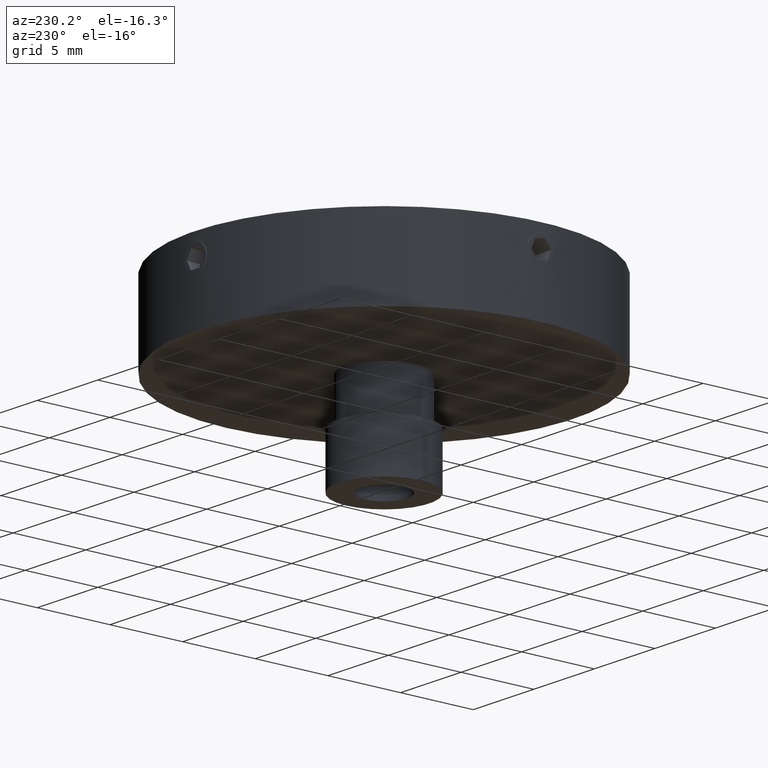
[diagram: clean part render]
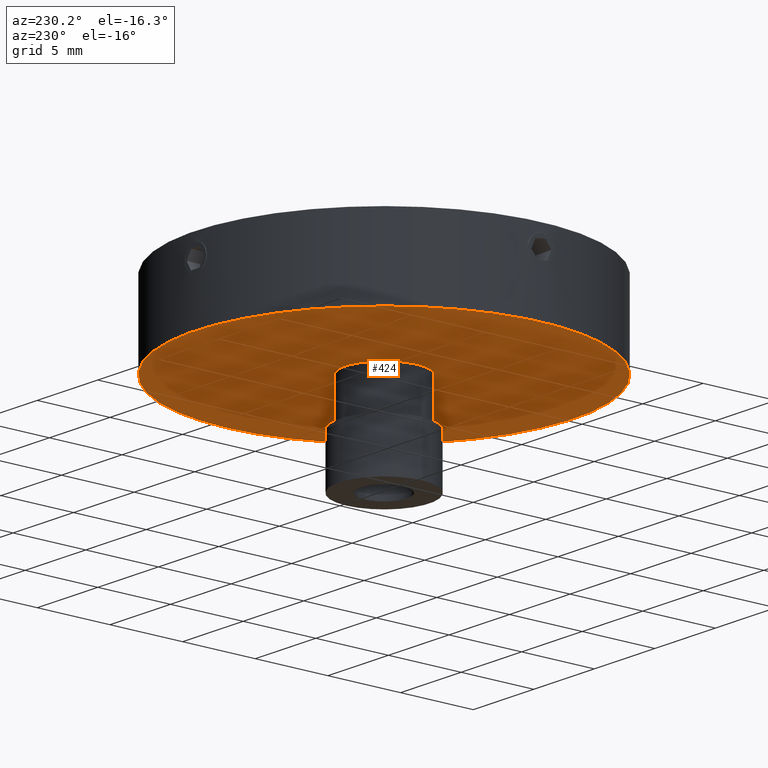
[diagram: same view with one face highlighted and labeled with its STEP entity id]
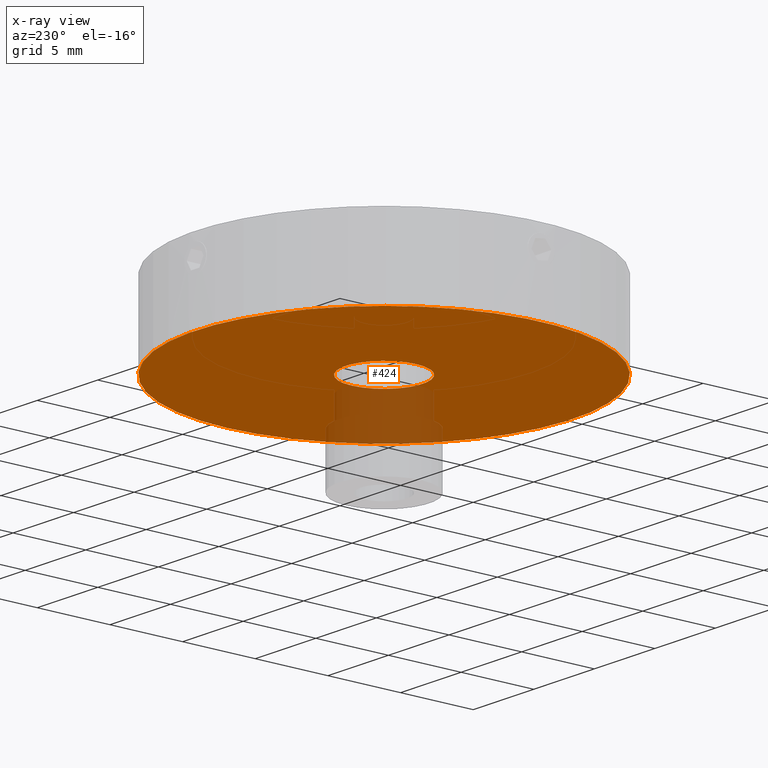
[diagram: x-ray of the same camera — body ghosted, the highlighted face saturated]
A machine part, auxiliary view. The second image highlights one B-rep face of the part: STEP entity #424.
The next image is the same camera in x-ray: the body ghosted, the highlighted face saturated — about 11% of this face is hidden behind the body in this view.
In plain terms, the highlighted planar face has unit normal (0, 0, 1).
Its self-contained STEP definition (entity closure, byte-faithful):
#106 = CARTESIAN_POINT ( 'NONE',  ( -1.822524619646406000, -1.515573104758408500, 26.50000000000000400 ) ) ;
#169 = FACE_BOUND ( 'NONE', #1042, .T. ) ;
#170 = AXIS2_PLACEMENT_3D ( 'NONE', #823, #193, #322 ) ;
#175 = AXIS2_PLACEMENT_3D ( 'NONE', #1046, #957, #385 ) ;
#193 = DIRECTION ( 'NONE',  ( 0.0000000000000000000, 0.0000000000000000000, 1.000000000000000000 ) ) ;
#214 = CARTESIAN_POINT ( 'NONE',  ( 0.8274753803535939100, -1.515573104758408500, 26.50000000000000400 ) ) ;
#246 = CIRCLE ( 'NONE', #571, 2.649999999999999900 ) ;
#263 = ORIENTED_EDGE ( 'NONE', *, *, #861, .F. ) ;
#322 = DIRECTION ( 'NONE',  ( 1.000000000000000000, 0.0000000000000000000, 0.0000000000000000000 ) ) ;
#346 = DIRECTION ( 'NONE',  ( -0.0000000000000000000, -0.0000000000000000000, -1.000000000000000000 ) ) ;
#385 = DIRECTION ( 'NONE',  ( 1.000000000000000000, 0.0000000000000000000, -0.0000000000000000000 ) ) ;
#405 = ORIENTED_EDGE ( 'NONE', *, *, #500, .F. ) ;
#424 = ADVANCED_FACE ( 'NONE', ( #458, #169 ), #717, .F. ) ;
#458 = FACE_OUTER_BOUND ( 'NONE', #797, .T. ) ;
#500 = EDGE_CURVE ( 'NONE', #782, #782, #246, .T. ) ;
#571 = AXIS2_PLACEMENT_3D ( 'NONE', #106, #346, #987 ) ;
#717 = PLANE ( 'NONE',  #175 ) ;
#782 = VERTEX_POINT ( 'NONE', #214 ) ;
#790 = CARTESIAN_POINT ( 'NONE',  ( 11.17747538035359500, -1.515573104758408500, 26.50000000000000400 ) ) ;
#797 = EDGE_LOOP ( 'NONE', ( #263 ) ) ;
#812 = CIRCLE ( 'NONE', #170, 13.00000000000000200 ) ;
#823 = CARTESIAN_POINT ( 'NONE',  ( -1.822524619646406000, -1.515573104758408500, 26.50000000000000400 ) ) ;
#861 = EDGE_CURVE ( 'NONE', #1023, #1023, #812, .T. ) ;
#957 = DIRECTION ( 'NONE',  ( 0.0000000000000000000, 0.0000000000000000000, 1.000000000000000000 ) ) ;
#987 = DIRECTION ( 'NONE',  ( 1.000000000000000000, 0.0000000000000000000, 0.0000000000000000000 ) ) ;
#1023 = VERTEX_POINT ( 'NONE', #790 ) ;
#1042 = EDGE_LOOP ( 'NONE', ( #405 ) ) ;
#1046 = CARTESIAN_POINT ( 'NONE',  ( -1.822524619646406000, -1.515573104758408500, 26.50000000000000400 ) ) ;